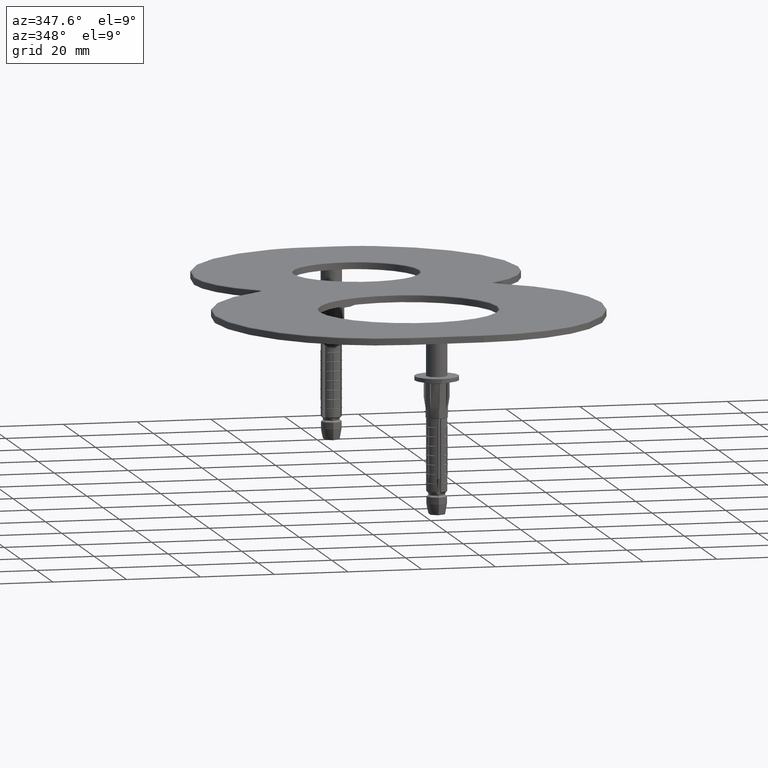
[diagram: clean part render]
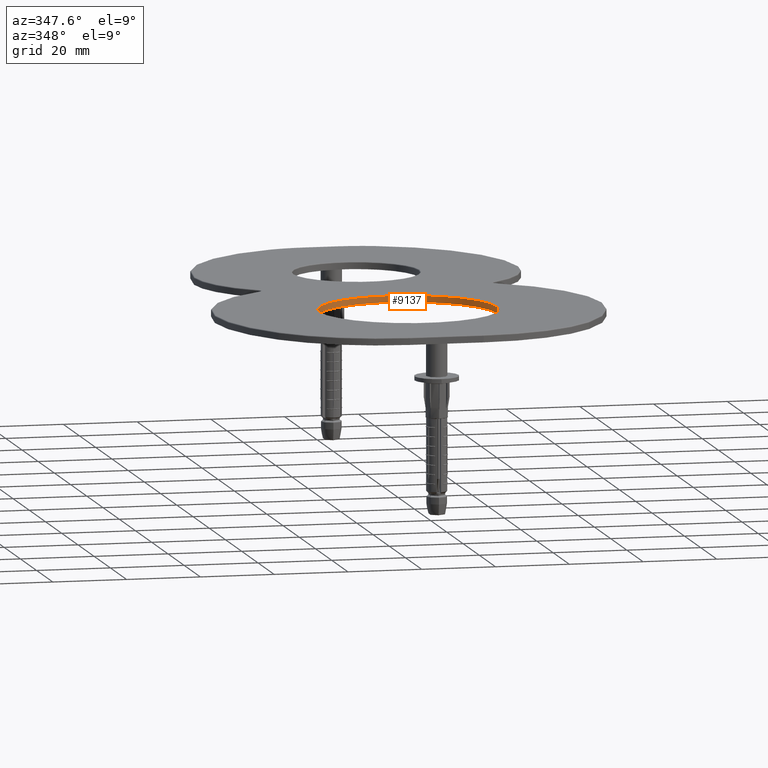
[diagram: same view with one face highlighted and labeled with its STEP entity id]
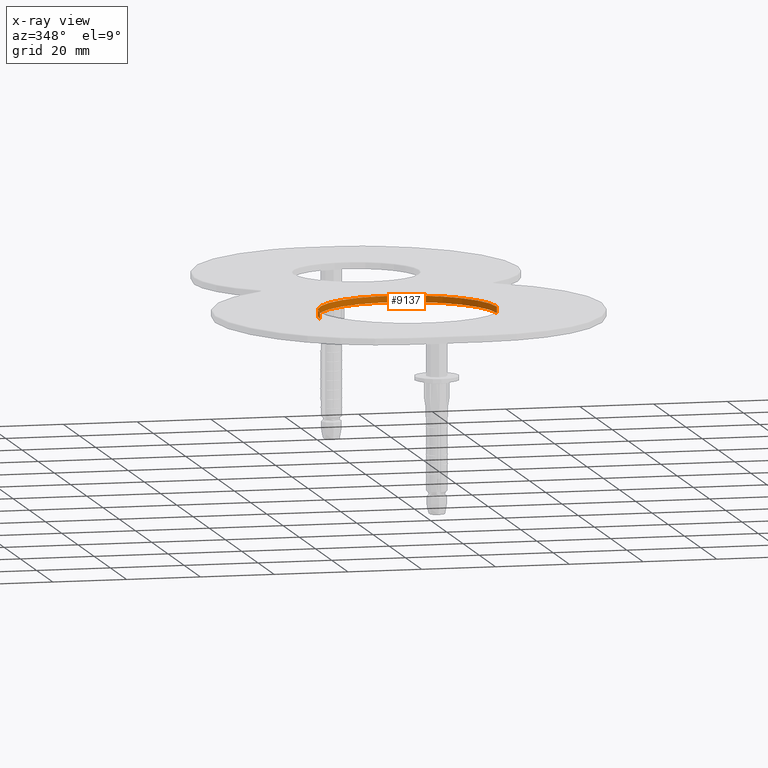
[diagram: x-ray of the same camera — body ghosted, the highlighted face saturated]
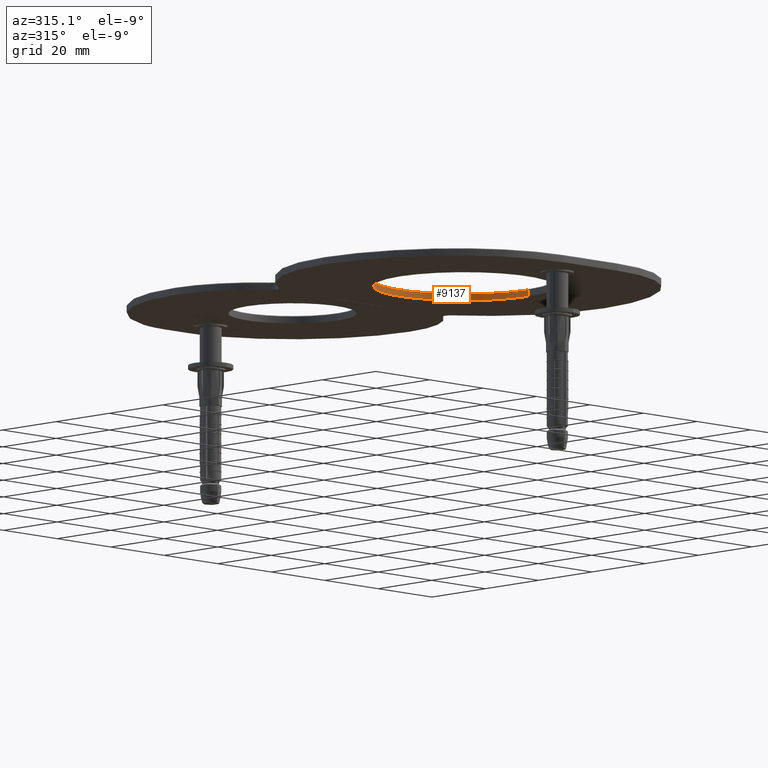
[diagram: same view with one face highlighted and labeled with its STEP entity id]
A machine part, auxiliary view. The second image highlights one B-rep face of the part: STEP entity #9137.
The next image is the same camera in x-ray: the body ghosted, the highlighted face saturated — about 0% of this face is hidden behind the body in this view.
A second angle (auxiliary view) of the same face is appended — the face is thin or edge-on in the first view.
In plain terms, the highlighted cylindrical surface (partial cylindrical patch) has radius 24 mm, axis along (-0, -0, -1).
Its self-contained STEP definition (entity closure, byte-faithful):
#1262 = CARTESIAN_POINT ( 'NONE',  ( -3.116700961018092268E-28, 47.44512821545820458, 1.750000000000000000 ) ) ;
#2248 = DIRECTION ( 'NONE',  ( -0.000000000000000000, -0.000000000000000000, -1.000000000000000000 ) ) ;
#2962 = VECTOR ( 'NONE', #2248, 1000.000000000000000 ) ;
#2965 = VERTEX_POINT ( 'NONE', #12635 ) ;
#3130 = EDGE_CURVE ( 'NONE', #19560, #36173, #39745, .T. ) ;
#3709 = CARTESIAN_POINT ( 'NONE',  ( 24.00000000000000000, 47.44512821545820458, 2.000000000000000000 ) ) ;
#3962 = FACE_OUTER_BOUND ( 'NONE', #23298, .T. ) ;
#4317 = VERTEX_POINT ( 'NONE', #27352 ) ;
#5285 = AXIS2_PLACEMENT_3D ( 'NONE', #5821, #20951, #12008 ) ;
#5821 = CARTESIAN_POINT ( 'NONE',  ( -3.116700961018092268E-28, 47.44512821545820458, 0.000000000000000000 ) ) ;
#6279 = CARTESIAN_POINT ( 'NONE',  ( 24.00000000000000000, 47.44512821545820458, 1.750000000000000000 ) ) ;
#6359 = LINE ( 'NONE', #39484, #2962 ) ;
#9137 = ADVANCED_FACE ( 'NONE', ( #3962 ), #37533, .F. ) ;
#11397 = EDGE_CURVE ( 'NONE', #19560, #2965, #23846, .T. ) ;
#12008 = DIRECTION ( 'NONE',  ( 1.000000000000000000, 0.000000000000000000, 0.000000000000000000 ) ) ;
#12236 = VECTOR ( 'NONE', #22772, 1000.000000000000000 ) ;
#12635 = CARTESIAN_POINT ( 'NONE',  ( 24.00000000000000000, 47.44512821545820458, 0.000000000000000000 ) ) ;
#13023 = ORIENTED_EDGE ( 'NONE', *, *, #34519, .T. ) ;
#17444 = ORIENTED_EDGE ( 'NONE', *, *, #11397, .F. ) ;
#18902 = CARTESIAN_POINT ( 'NONE',  ( -24.00000000000000000, 47.44512821545820458, 1.750000000000000000 ) ) ;
#19560 = VERTEX_POINT ( 'NONE', #6279 ) ;
#20735 = CIRCLE ( 'NONE', #5285, 24.00000000000000000 ) ;
#20951 = DIRECTION ( 'NONE',  ( 0.000000000000000000, 0.000000000000000000, 1.000000000000000000 ) ) ;
#22772 = DIRECTION ( 'NONE',  ( -0.000000000000000000, -0.000000000000000000, -1.000000000000000000 ) ) ;
#22784 = EDGE_CURVE ( 'NONE', #2965, #4317, #20735, .T. ) ;
#23298 = EDGE_LOOP ( 'NONE', ( #17444, #31875, #13023, #38287 ) ) ;
#23846 = LINE ( 'NONE', #3709, #12236 ) ;
#24185 = DIRECTION ( 'NONE',  ( -0.000000000000000000, -0.000000000000000000, -1.000000000000000000 ) ) ;
#25942 = DIRECTION ( 'NONE',  ( 1.000000000000000000, 0.000000000000000000, 0.000000000000000000 ) ) ;
#26917 = AXIS2_PLACEMENT_3D ( 'NONE', #1262, #29234, #25942 ) ;
#27352 = CARTESIAN_POINT ( 'NONE',  ( -24.00000000000000000, 47.44512821545820458, 0.000000000000000000 ) ) ;
#29234 = DIRECTION ( 'NONE',  ( 0.000000000000000000, 0.000000000000000000, 1.000000000000000000 ) ) ;
#30217 = AXIS2_PLACEMENT_3D ( 'NONE', #33027, #24185, #40114 ) ;
#31875 = ORIENTED_EDGE ( 'NONE', *, *, #3130, .T. ) ;
#33027 = CARTESIAN_POINT ( 'NONE',  ( -3.116700961018092268E-28, 47.44512821545820458, 2.000000000000000000 ) ) ;
#34519 = EDGE_CURVE ( 'NONE', #36173, #4317, #6359, .T. ) ;
#36173 = VERTEX_POINT ( 'NONE', #18902 ) ;
#37533 = CYLINDRICAL_SURFACE ( 'NONE', #30217, 24.00000000000000000 ) ;
#38287 = ORIENTED_EDGE ( 'NONE', *, *, #22784, .F. ) ;
#39484 = CARTESIAN_POINT ( 'NONE',  ( -24.00000000000000000, 47.44512821545820458, 2.000000000000000000 ) ) ;
#39745 = CIRCLE ( 'NONE', #26917, 24.00000000000000000 ) ;
#40114 = DIRECTION ( 'NONE',  ( -1.000000000000000000, 0.000000000000000000, 0.000000000000000000 ) ) ;